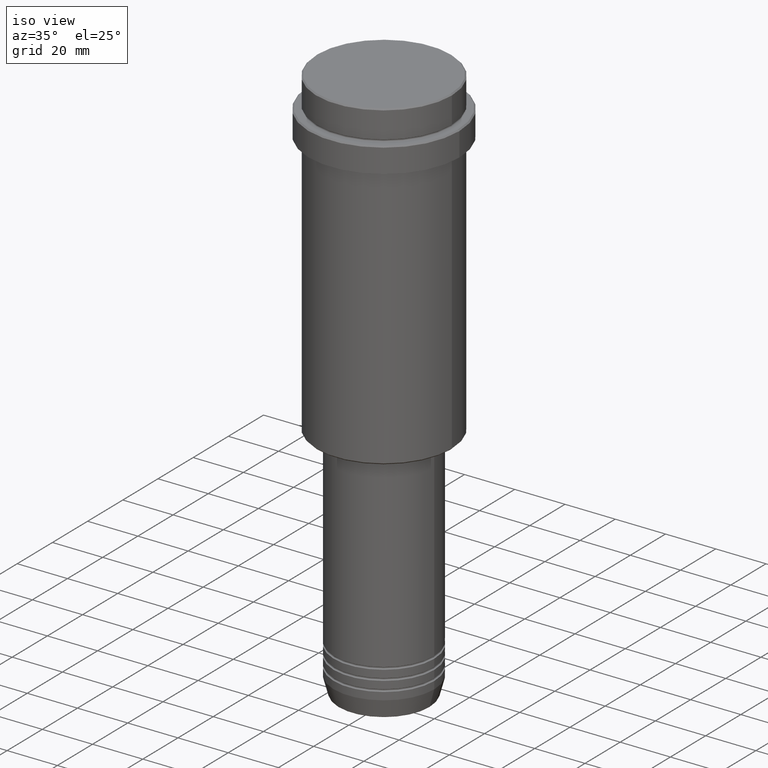
[diagram: clean part render]
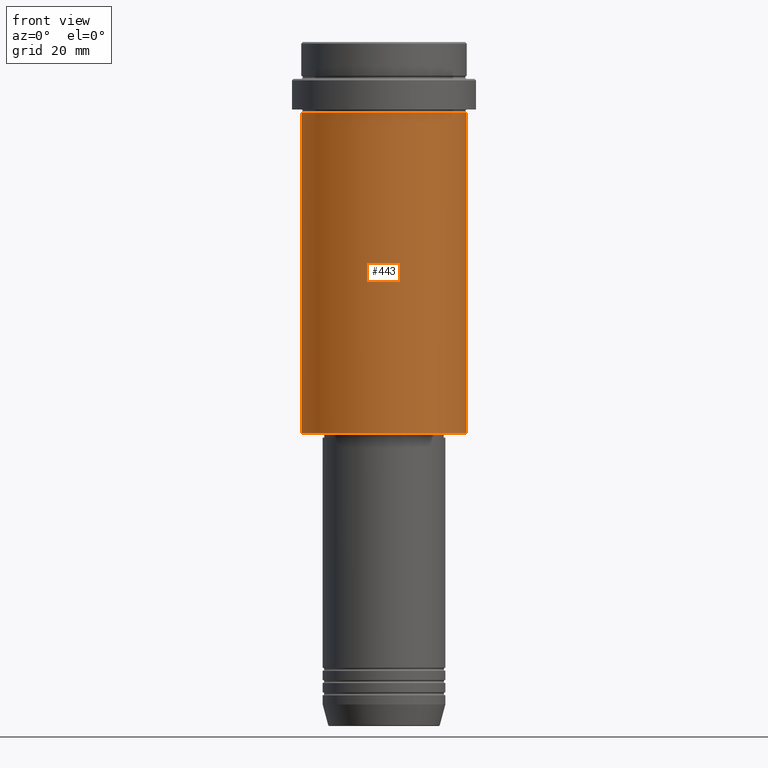
[diagram: tour spotlight — one face highlighted and labeled with its STEP entity id]
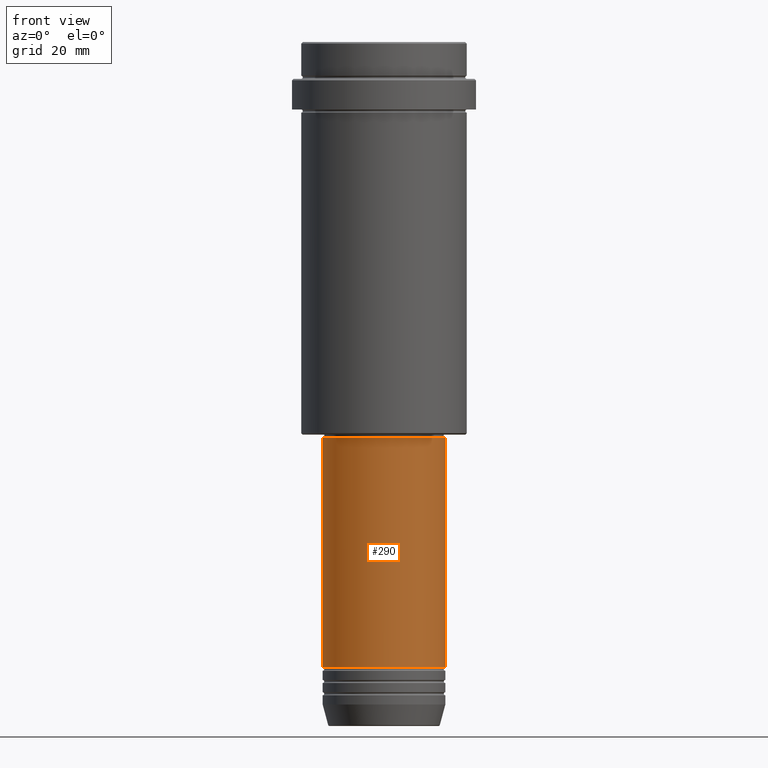
[diagram: tour spotlight — one face highlighted and labeled with its STEP entity id]
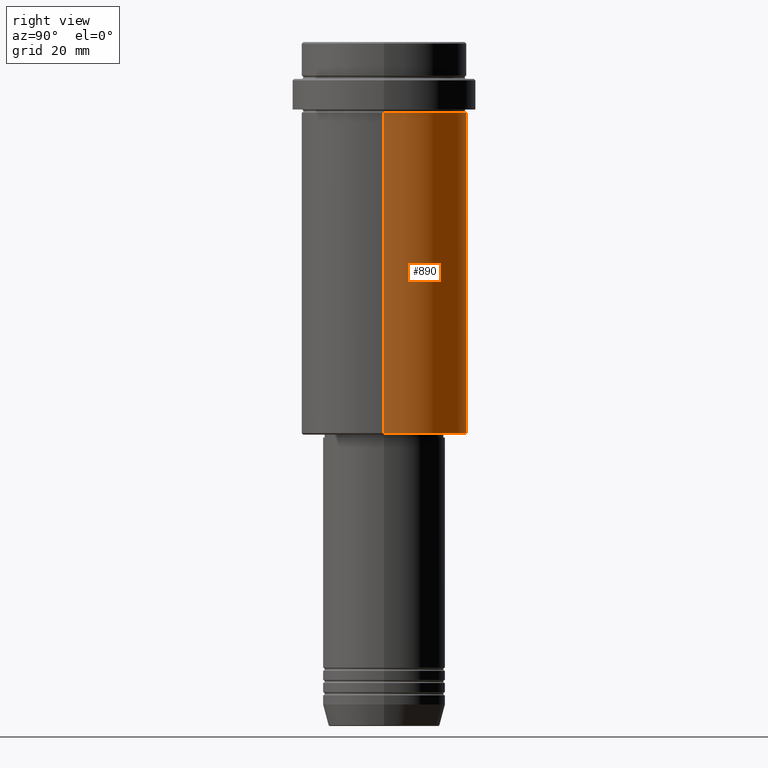
[diagram: tour spotlight — one face highlighted and labeled with its STEP entity id]
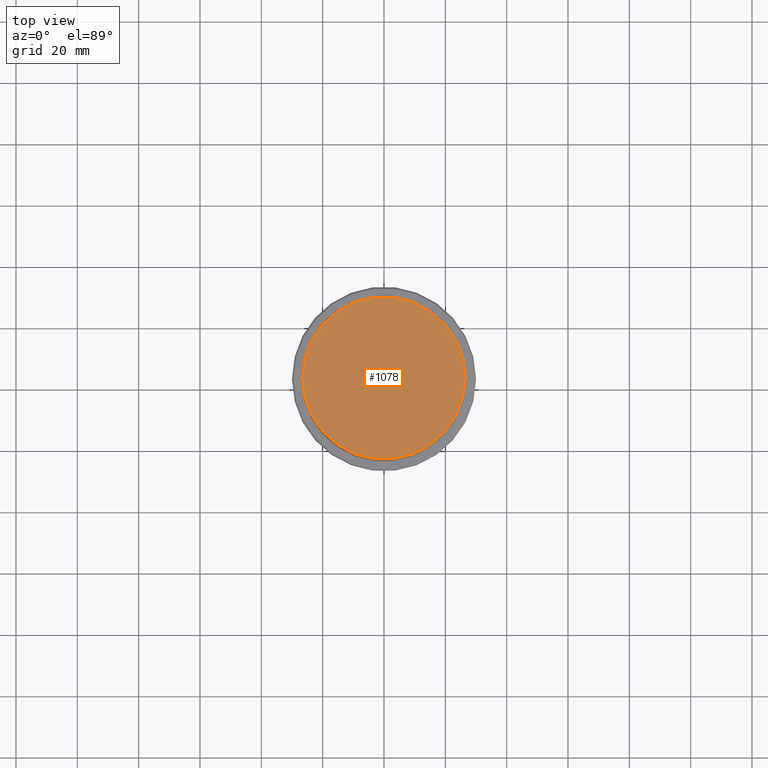
[diagram: tour spotlight — one face highlighted and labeled with its STEP entity id]
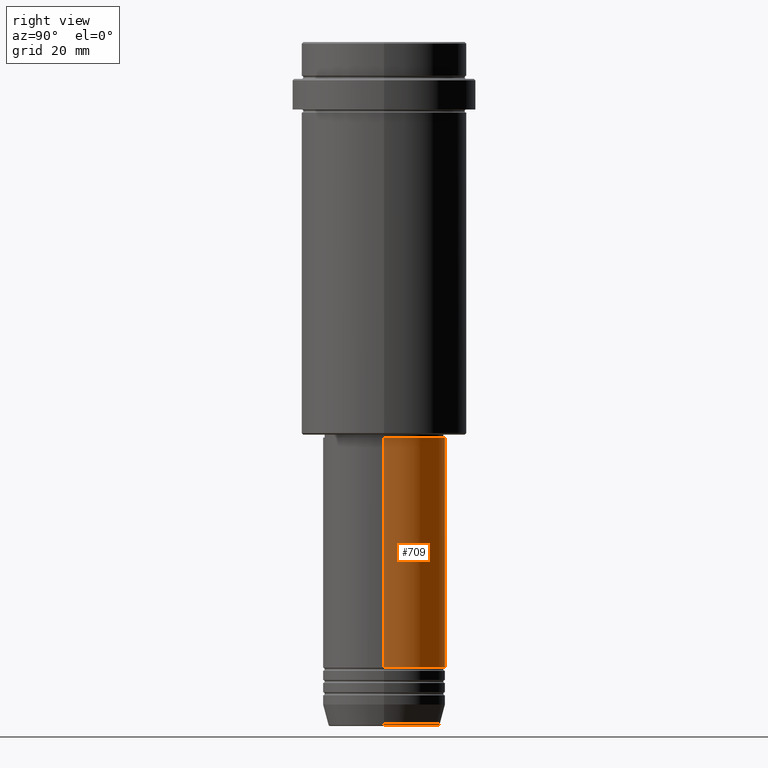
[diagram: tour spotlight — one face highlighted and labeled with its STEP entity id]
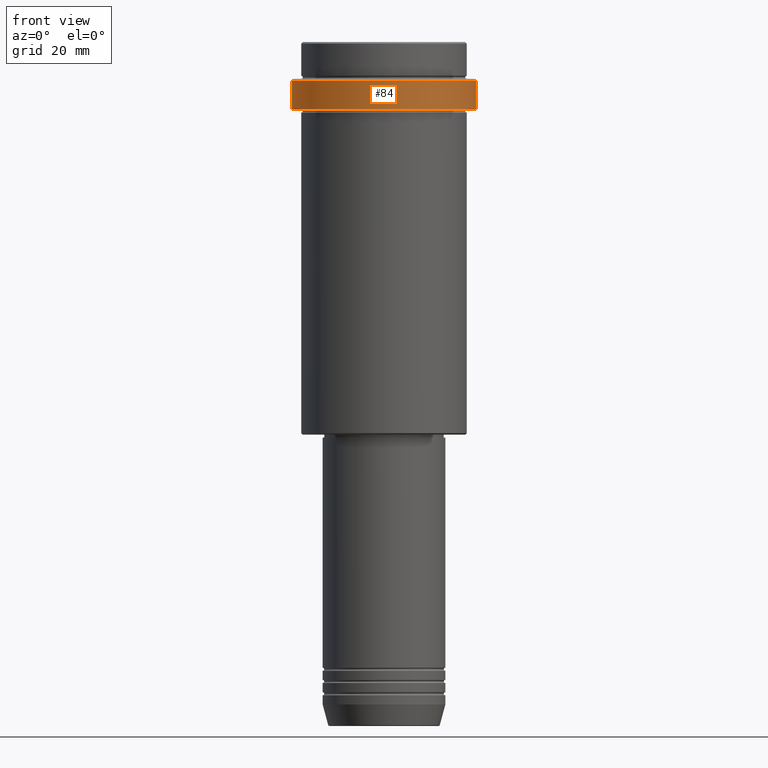
[diagram: tour spotlight — one face highlighted and labeled with its STEP entity id]
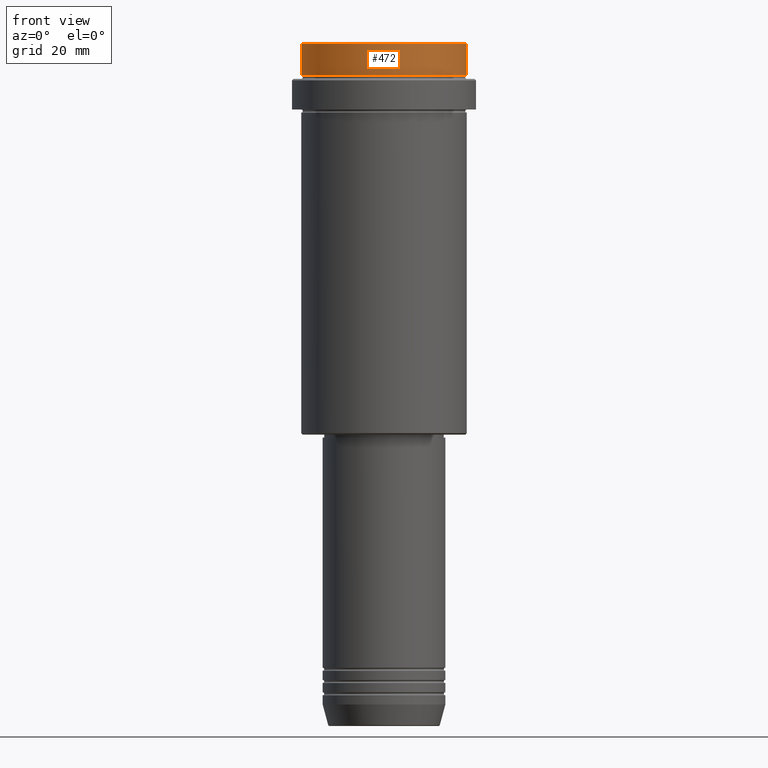
[diagram: tour spotlight — one face highlighted and labeled with its STEP entity id]
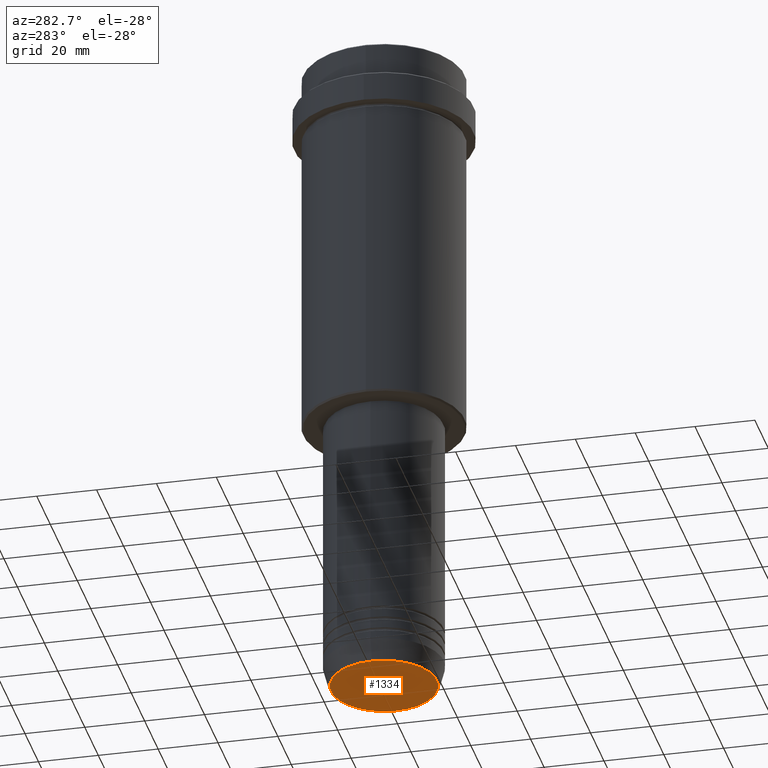
[diagram: tour spotlight — one face highlighted and labeled with its STEP entity id]
A machine part: a face-by-face anatomy tour. The part has 52 B-rep faces; the first image is the clean iso view, then the 8 largest visible faces are spotlighted one at a time (largest first), each with its STEP entity span.

Face 1 — front view, entity #443. In plain terms, the highlighted cylindrical surface (partial cylindrical patch) has radius 27 mm, axis along (-0, -0, 1).
Definition (entity closure, byte-faithful):
#11 = CARTESIAN_POINT ( 'NONE',  ( -26.99999999999999645, 3.306546357697853339E-15, -127.5000000000000284 ) ) ;
#41 = VERTEX_POINT ( 'NONE', #387 ) ;
#50 = DIRECTION ( 'NONE',  ( 1.000000000000000000, 0.000000000000000000, 0.000000000000000000 ) ) ;
#122 = CARTESIAN_POINT ( 'NONE',  ( 0.000000000000000000, 0.000000000000000000, -23.00000000000000000 ) ) ;
#161 = VECTOR ( 'NONE', #518, 1000.000000000000000 ) ;
#186 = EDGE_CURVE ( 'NONE', #1408, #680, #422, .T. ) ;
#214 = DIRECTION ( 'NONE',  ( -1.000000000000000000, 0.000000000000000000, 0.000000000000000000 ) ) ;
#277 = ORIENTED_EDGE ( 'NONE', *, *, #1221, .F. ) ;
#304 = CIRCLE ( 'NONE', #493, 26.99999999999999645 ) ;
#331 = VERTEX_POINT ( 'NONE', #11 ) ;
#357 = DIRECTION ( 'NONE',  ( -0.000000000000000000, -0.000000000000000000, 1.000000000000000000 ) ) ;
#386 = FACE_OUTER_BOUND ( 'NONE', #482, .T. ) ;
#387 = CARTESIAN_POINT ( 'NONE',  ( -26.99999999999999645, 3.306546357697853339E-15, -23.00000000000000000 ) ) ;
#401 = AXIS2_PLACEMENT_3D ( 'NONE', #620, #1254, #50 ) ;
#403 = LINE ( 'NONE', #1353, #736 ) ;
#422 = LINE ( 'NONE', #1273, #161 ) ;
#443 = ADVANCED_FACE ( 'NONE', ( #386 ), #1343, .T. ) ;
#455 = CARTESIAN_POINT ( 'NONE',  ( 0.000000000000000000, 0.000000000000000000, -127.5000000000000284 ) ) ;
#458 = ORIENTED_EDGE ( 'NONE', *, *, #717, .T. ) ;
#482 = EDGE_LOOP ( 'NONE', ( #1202, #458, #1125, #277 ) ) ;
#493 = AXIS2_PLACEMENT_3D ( 'NONE', #122, #1123, #804 ) ;
#518 = DIRECTION ( 'NONE',  ( -0.000000000000000000, -0.000000000000000000, 1.000000000000000000 ) ) ;
#542 = CIRCLE ( 'NONE', #816, 26.99999999999999645 ) ;
#599 = DIRECTION ( 'NONE',  ( -0.000000000000000000, -0.000000000000000000, 1.000000000000000000 ) ) ;
#620 = CARTESIAN_POINT ( 'NONE',  ( 0.000000000000000000, 0.000000000000000000, 0.000000000000000000 ) ) ;
#680 = VERTEX_POINT ( 'NONE', #1403 ) ;
#717 = EDGE_CURVE ( 'NONE', #331, #1408, #542, .T. ) ;
#736 = VECTOR ( 'NONE', #599, 1000.000000000000000 ) ;
#804 = DIRECTION ( 'NONE',  ( 1.000000000000000000, 0.000000000000000000, 0.000000000000000000 ) ) ;
#816 = AXIS2_PLACEMENT_3D ( 'NONE', #455, #357, #214 ) ;
#946 = CARTESIAN_POINT ( 'NONE',  ( 26.99999999999999645, 0.000000000000000000, -127.5000000000000284 ) ) ;
#1123 = DIRECTION ( 'NONE',  ( -0.000000000000000000, -0.000000000000000000, 1.000000000000000000 ) ) ;
#1125 = ORIENTED_EDGE ( 'NONE', *, *, #186, .T. ) ;
#1202 = ORIENTED_EDGE ( 'NONE', *, *, #1340, .F. ) ;
#1221 = EDGE_CURVE ( 'NONE', #41, #680, #304, .T. ) ;
#1254 = DIRECTION ( 'NONE',  ( -0.000000000000000000, -0.000000000000000000, 1.000000000000000000 ) ) ;
#1273 = CARTESIAN_POINT ( 'NONE',  ( 26.99999999999999645, 0.000000000000000000, 0.000000000000000000 ) ) ;
#1340 = EDGE_CURVE ( 'NONE', #331, #41, #403, .T. ) ;
#1343 = CYLINDRICAL_SURFACE ( 'NONE', #401, 26.99999999999999645 ) ;
#1353 = CARTESIAN_POINT ( 'NONE',  ( -26.99999999999999645, 3.306546357697853339E-15, 0.000000000000000000 ) ) ;
#1403 = CARTESIAN_POINT ( 'NONE',  ( 26.99999999999999645, 0.000000000000000000, -23.00000000000000000 ) ) ;
#1408 = VERTEX_POINT ( 'NONE', #946 ) ;

Face 2 — front view, entity #290. In plain terms, the highlighted cylindrical surface (partial cylindrical patch) has radius 20 mm, axis along (-0, -0, 1).
Definition (entity closure, byte-faithful):
#6 = CIRCLE ( 'NONE', #586, 19.99999999999999645 ) ;
#39 = EDGE_CURVE ( 'NONE', #578, #602, #393, .T. ) ;
#72 = AXIS2_PLACEMENT_3D ( 'NONE', #211, #650, #100 ) ;
#100 = DIRECTION ( 'NONE',  ( 1.000000000000000000, 0.000000000000000000, 0.000000000000000000 ) ) ;
#109 = DIRECTION ( 'NONE',  ( -0.000000000000000000, -0.000000000000000000, 1.000000000000000000 ) ) ;
#126 = CARTESIAN_POINT ( 'NONE',  ( 0.000000000000000000, 0.000000000000000000, -129.0000000000000284 ) ) ;
#133 = VERTEX_POINT ( 'NONE', #1268 ) ;
#142 = CARTESIAN_POINT ( 'NONE',  ( -19.99999999999999645, 2.449293598294706119E-15, 0.000000000000000000 ) ) ;
#169 = ORIENTED_EDGE ( 'NONE', *, *, #39, .F. ) ;
#211 = CARTESIAN_POINT ( 'NONE',  ( 0.000000000000000000, 0.000000000000000000, -203.9999999999999147 ) ) ;
#275 = LINE ( 'NONE', #809, #1128 ) ;
#290 = ADVANCED_FACE ( 'NONE', ( #772 ), #471, .T. ) ;
#300 = VERTEX_POINT ( 'NONE', #684 ) ;
#393 = LINE ( 'NONE', #142, #831 ) ;
#419 = EDGE_CURVE ( 'NONE', #133, #300, #275, .T. ) ;
#426 = AXIS2_PLACEMENT_3D ( 'NONE', #897, #109, #784 ) ;
#460 = ORIENTED_EDGE ( 'NONE', *, *, #1266, .F. ) ;
#471 = CYLINDRICAL_SURFACE ( 'NONE', #426, 19.99999999999999645 ) ;
#499 = DIRECTION ( 'NONE',  ( -0.000000000000000000, -0.000000000000000000, 1.000000000000000000 ) ) ;
#561 = ORIENTED_EDGE ( 'NONE', *, *, #1076, .T. ) ;
#578 = VERTEX_POINT ( 'NONE', #1288 ) ;
#586 = AXIS2_PLACEMENT_3D ( 'NONE', #126, #921, #1111 ) ;
#602 = VERTEX_POINT ( 'NONE', #1393 ) ;
#650 = DIRECTION ( 'NONE',  ( -0.000000000000000000, -0.000000000000000000, 1.000000000000000000 ) ) ;
#684 = CARTESIAN_POINT ( 'NONE',  ( 19.99999999999999645, 0.000000000000000000, -129.0000000000000284 ) ) ;
#772 = FACE_OUTER_BOUND ( 'NONE', #1216, .T. ) ;
#784 = DIRECTION ( 'NONE',  ( 1.000000000000000000, 0.000000000000000000, 0.000000000000000000 ) ) ;
#809 = CARTESIAN_POINT ( 'NONE',  ( 19.99999999999999645, 0.000000000000000000, 0.000000000000000000 ) ) ;
#831 = VECTOR ( 'NONE', #1143, 1000.000000000000000 ) ;
#897 = CARTESIAN_POINT ( 'NONE',  ( 0.000000000000000000, 0.000000000000000000, 0.000000000000000000 ) ) ;
#921 = DIRECTION ( 'NONE',  ( -0.000000000000000000, -0.000000000000000000, 1.000000000000000000 ) ) ;
#1076 = EDGE_CURVE ( 'NONE', #578, #133, #1163, .T. ) ;
#1111 = DIRECTION ( 'NONE',  ( 1.000000000000000000, 0.000000000000000000, 0.000000000000000000 ) ) ;
#1128 = VECTOR ( 'NONE', #499, 1000.000000000000000 ) ;
#1143 = DIRECTION ( 'NONE',  ( -0.000000000000000000, -0.000000000000000000, 1.000000000000000000 ) ) ;
#1163 = CIRCLE ( 'NONE', #72, 20.00000000000000000 ) ;
#1205 = ORIENTED_EDGE ( 'NONE', *, *, #419, .T. ) ;
#1216 = EDGE_LOOP ( 'NONE', ( #169, #561, #1205, #460 ) ) ;
#1266 = EDGE_CURVE ( 'NONE', #602, #300, #6, .T. ) ;
#1268 = CARTESIAN_POINT ( 'NONE',  ( 20.00000000000000000, 0.000000000000000000, -203.9999999999999147 ) ) ;
#1288 = CARTESIAN_POINT ( 'NONE',  ( -20.00000000000000000, 2.449293598294706513E-15, -203.9999999999999147 ) ) ;
#1393 = CARTESIAN_POINT ( 'NONE',  ( -19.99999999999999645, 2.449293598294706119E-15, -129.0000000000000284 ) ) ;

Face 3 — right view, entity #890. In plain terms, the highlighted cylindrical surface (partial cylindrical patch) has radius 27 mm, axis along (-0, -0, 1).
Definition (entity closure, byte-faithful):
#11 = CARTESIAN_POINT ( 'NONE',  ( -26.99999999999999645, 3.306546357697853339E-15, -127.5000000000000284 ) ) ;
#41 = VERTEX_POINT ( 'NONE', #387 ) ;
#102 = CYLINDRICAL_SURFACE ( 'NONE', #767, 26.99999999999999645 ) ;
#161 = VECTOR ( 'NONE', #518, 1000.000000000000000 ) ;
#186 = EDGE_CURVE ( 'NONE', #1408, #680, #422, .T. ) ;
#191 = DIRECTION ( 'NONE',  ( -0.000000000000000000, -0.000000000000000000, 1.000000000000000000 ) ) ;
#235 = AXIS2_PLACEMENT_3D ( 'NONE', #974, #191, #412 ) ;
#317 = EDGE_CURVE ( 'NONE', #1408, #331, #1280, .T. ) ;
#331 = VERTEX_POINT ( 'NONE', #11 ) ;
#343 = FACE_OUTER_BOUND ( 'NONE', #600, .T. ) ;
#387 = CARTESIAN_POINT ( 'NONE',  ( -26.99999999999999645, 3.306546357697853339E-15, -23.00000000000000000 ) ) ;
#399 = ORIENTED_EDGE ( 'NONE', *, *, #601, .F. ) ;
#403 = LINE ( 'NONE', #1353, #736 ) ;
#412 = DIRECTION ( 'NONE',  ( 1.000000000000000000, 0.000000000000000000, 0.000000000000000000 ) ) ;
#422 = LINE ( 'NONE', #1273, #161 ) ;
#445 = DIRECTION ( 'NONE',  ( -1.000000000000000000, 0.000000000000000000, 0.000000000000000000 ) ) ;
#518 = DIRECTION ( 'NONE',  ( -0.000000000000000000, -0.000000000000000000, 1.000000000000000000 ) ) ;
#599 = DIRECTION ( 'NONE',  ( -0.000000000000000000, -0.000000000000000000, 1.000000000000000000 ) ) ;
#600 = EDGE_LOOP ( 'NONE', ( #1325, #988, #399, #1382 ) ) ;
#601 = EDGE_CURVE ( 'NONE', #680, #41, #978, .T. ) ;
#680 = VERTEX_POINT ( 'NONE', #1403 ) ;
#736 = VECTOR ( 'NONE', #599, 1000.000000000000000 ) ;
#767 = AXIS2_PLACEMENT_3D ( 'NONE', #985, #1410, #876 ) ;
#876 = DIRECTION ( 'NONE',  ( 1.000000000000000000, 0.000000000000000000, 0.000000000000000000 ) ) ;
#885 = CARTESIAN_POINT ( 'NONE',  ( 0.000000000000000000, 0.000000000000000000, -127.5000000000000284 ) ) ;
#890 = ADVANCED_FACE ( 'NONE', ( #343 ), #102, .T. ) ;
#946 = CARTESIAN_POINT ( 'NONE',  ( 26.99999999999999645, 0.000000000000000000, -127.5000000000000284 ) ) ;
#974 = CARTESIAN_POINT ( 'NONE',  ( 0.000000000000000000, 0.000000000000000000, -23.00000000000000000 ) ) ;
#978 = CIRCLE ( 'NONE', #235, 26.99999999999999645 ) ;
#985 = CARTESIAN_POINT ( 'NONE',  ( 0.000000000000000000, 0.000000000000000000, 0.000000000000000000 ) ) ;
#988 = ORIENTED_EDGE ( 'NONE', *, *, #1340, .T. ) ;
#1093 = DIRECTION ( 'NONE',  ( -0.000000000000000000, -0.000000000000000000, 1.000000000000000000 ) ) ;
#1273 = CARTESIAN_POINT ( 'NONE',  ( 26.99999999999999645, 0.000000000000000000, 0.000000000000000000 ) ) ;
#1280 = CIRCLE ( 'NONE', #1304, 26.99999999999999645 ) ;
#1304 = AXIS2_PLACEMENT_3D ( 'NONE', #885, #1093, #445 ) ;
#1325 = ORIENTED_EDGE ( 'NONE', *, *, #317, .T. ) ;
#1340 = EDGE_CURVE ( 'NONE', #331, #41, #403, .T. ) ;
#1353 = CARTESIAN_POINT ( 'NONE',  ( -26.99999999999999645, 3.306546357697853339E-15, 0.000000000000000000 ) ) ;
#1382 = ORIENTED_EDGE ( 'NONE', *, *, #186, .F. ) ;
#1403 = CARTESIAN_POINT ( 'NONE',  ( 26.99999999999999645, 0.000000000000000000, -23.00000000000000000 ) ) ;
#1408 = VERTEX_POINT ( 'NONE', #946 ) ;
#1410 = DIRECTION ( 'NONE',  ( -0.000000000000000000, -0.000000000000000000, 1.000000000000000000 ) ) ;

Face 4 — top view, entity #1078. In plain terms, the highlighted planar face has unit normal (0, -0, 1).
Definition (entity closure, byte-faithful):
#21 = VERTEX_POINT ( 'NONE', #149 ) ;
#138 = CIRCLE ( 'NONE', #1041, 26.50000000000002487 ) ;
#149 = CARTESIAN_POINT ( 'NONE',  ( -26.50000000000002487, 0.000000000000000000, 0.000000000000000000 ) ) ;
#171 = ORIENTED_EDGE ( 'NONE', *, *, #463, .T. ) ;
#197 = FACE_OUTER_BOUND ( 'NONE', #553, .T. ) ;
#284 = AXIS2_PLACEMENT_3D ( 'NONE', #696, #1126, #913 ) ;
#360 = DIRECTION ( 'NONE',  ( -0.000000000000000000, -0.000000000000000000, 1.000000000000000000 ) ) ;
#364 = EDGE_CURVE ( 'NONE', #697, #21, #138, .T. ) ;
#463 = EDGE_CURVE ( 'NONE', #21, #697, #701, .T. ) ;
#553 = EDGE_LOOP ( 'NONE', ( #171, #1293 ) ) ;
#645 = CARTESIAN_POINT ( 'NONE',  ( 26.50000000000002487, 3.275930187719171130E-15, 0.000000000000000000 ) ) ;
#696 = CARTESIAN_POINT ( 'NONE',  ( 0.000000000000000000, 0.000000000000000000, 0.000000000000000000 ) ) ;
#697 = VERTEX_POINT ( 'NONE', #645 ) ;
#701 = CIRCLE ( 'NONE', #284, 26.50000000000002487 ) ;
#797 = DIRECTION ( 'NONE',  ( 1.000000000000000000, 0.000000000000000000, 0.000000000000000000 ) ) ;
#866 = PLANE ( 'NONE',  #1217 ) ;
#889 = CARTESIAN_POINT ( 'NONE',  ( 0.000000000000000000, 0.000000000000000000, 0.000000000000000000 ) ) ;
#913 = DIRECTION ( 'NONE',  ( 1.000000000000000000, 0.000000000000000000, 0.000000000000000000 ) ) ;
#990 = DIRECTION ( 'NONE',  ( 0.000000000000000000, -0.000000000000000000, 1.000000000000000000 ) ) ;
#1041 = AXIS2_PLACEMENT_3D ( 'NONE', #1098, #360, #797 ) ;
#1075 = DIRECTION ( 'NONE',  ( 1.000000000000000000, 0.000000000000000000, 0.000000000000000000 ) ) ;
#1078 = ADVANCED_FACE ( 'NONE', ( #197 ), #866, .T. ) ;
#1098 = CARTESIAN_POINT ( 'NONE',  ( 0.000000000000000000, 0.000000000000000000, 0.000000000000000000 ) ) ;
#1126 = DIRECTION ( 'NONE',  ( -0.000000000000000000, -0.000000000000000000, 1.000000000000000000 ) ) ;
#1217 = AXIS2_PLACEMENT_3D ( 'NONE', #889, #990, #1075 ) ;
#1293 = ORIENTED_EDGE ( 'NONE', *, *, #364, .T. ) ;

Face 5 — right view, entity #709. In plain terms, the highlighted cylindrical surface (partial cylindrical patch) has radius 20 mm, axis along (-0, -0, 1).
Definition (entity closure, byte-faithful):
#39 = EDGE_CURVE ( 'NONE', #578, #602, #393, .T. ) ;
#85 = DIRECTION ( 'NONE',  ( 1.000000000000000000, 0.000000000000000000, 0.000000000000000000 ) ) ;
#121 = ORIENTED_EDGE ( 'NONE', *, *, #419, .F. ) ;
#133 = VERTEX_POINT ( 'NONE', #1268 ) ;
#142 = CARTESIAN_POINT ( 'NONE',  ( -19.99999999999999645, 2.449293598294706119E-15, 0.000000000000000000 ) ) ;
#198 = CARTESIAN_POINT ( 'NONE',  ( 0.000000000000000000, 0.000000000000000000, 0.000000000000000000 ) ) ;
#275 = LINE ( 'NONE', #809, #1128 ) ;
#300 = VERTEX_POINT ( 'NONE', #684 ) ;
#318 = CARTESIAN_POINT ( 'NONE',  ( 0.000000000000000000, 0.000000000000000000, -203.9999999999999147 ) ) ;
#380 = DIRECTION ( 'NONE',  ( 1.000000000000000000, 0.000000000000000000, 0.000000000000000000 ) ) ;
#393 = LINE ( 'NONE', #142, #831 ) ;
#398 = DIRECTION ( 'NONE',  ( 1.000000000000000000, 0.000000000000000000, 0.000000000000000000 ) ) ;
#419 = EDGE_CURVE ( 'NONE', #133, #300, #275, .T. ) ;
#499 = DIRECTION ( 'NONE',  ( -0.000000000000000000, -0.000000000000000000, 1.000000000000000000 ) ) ;
#506 = ORIENTED_EDGE ( 'NONE', *, *, #637, .T. ) ;
#531 = EDGE_CURVE ( 'NONE', #300, #602, #1375, .T. ) ;
#578 = VERTEX_POINT ( 'NONE', #1288 ) ;
#602 = VERTEX_POINT ( 'NONE', #1393 ) ;
#637 = EDGE_CURVE ( 'NONE', #133, #578, #792, .T. ) ;
#684 = CARTESIAN_POINT ( 'NONE',  ( 19.99999999999999645, 0.000000000000000000, -129.0000000000000284 ) ) ;
#702 = AXIS2_PLACEMENT_3D ( 'NONE', #198, #1369, #398 ) ;
#708 = DIRECTION ( 'NONE',  ( -0.000000000000000000, -0.000000000000000000, 1.000000000000000000 ) ) ;
#709 = ADVANCED_FACE ( 'NONE', ( #1153 ), #746, .T. ) ;
#719 = AXIS2_PLACEMENT_3D ( 'NONE', #318, #1181, #85 ) ;
#746 = CYLINDRICAL_SURFACE ( 'NONE', #702, 19.99999999999999645 ) ;
#764 = AXIS2_PLACEMENT_3D ( 'NONE', #1349, #708, #380 ) ;
#792 = CIRCLE ( 'NONE', #719, 20.00000000000000000 ) ;
#809 = CARTESIAN_POINT ( 'NONE',  ( 19.99999999999999645, 0.000000000000000000, 0.000000000000000000 ) ) ;
#831 = VECTOR ( 'NONE', #1143, 1000.000000000000000 ) ;
#846 = ORIENTED_EDGE ( 'NONE', *, *, #531, .F. ) ;
#1022 = ORIENTED_EDGE ( 'NONE', *, *, #39, .T. ) ;
#1054 = EDGE_LOOP ( 'NONE', ( #506, #1022, #846, #121 ) ) ;
#1128 = VECTOR ( 'NONE', #499, 1000.000000000000000 ) ;
#1143 = DIRECTION ( 'NONE',  ( -0.000000000000000000, -0.000000000000000000, 1.000000000000000000 ) ) ;
#1153 = FACE_OUTER_BOUND ( 'NONE', #1054, .T. ) ;
#1181 = DIRECTION ( 'NONE',  ( -0.000000000000000000, -0.000000000000000000, 1.000000000000000000 ) ) ;
#1268 = CARTESIAN_POINT ( 'NONE',  ( 20.00000000000000000, 0.000000000000000000, -203.9999999999999147 ) ) ;
#1288 = CARTESIAN_POINT ( 'NONE',  ( -20.00000000000000000, 2.449293598294706513E-15, -203.9999999999999147 ) ) ;
#1349 = CARTESIAN_POINT ( 'NONE',  ( 0.000000000000000000, 0.000000000000000000, -129.0000000000000284 ) ) ;
#1369 = DIRECTION ( 'NONE',  ( -0.000000000000000000, -0.000000000000000000, 1.000000000000000000 ) ) ;
#1375 = CIRCLE ( 'NONE', #764, 19.99999999999999645 ) ;
#1393 = CARTESIAN_POINT ( 'NONE',  ( -19.99999999999999645, 2.449293598294706119E-15, -129.0000000000000284 ) ) ;

Face 6 — front view, entity #84. In plain terms, the highlighted cylindrical surface (partial cylindrical patch) has radius 30 mm, axis along (-0, -0, 1).
Definition (entity closure, byte-faithful):
#10 = AXIS2_PLACEMENT_3D ( 'NONE', #429, #873, #1180 ) ;
#12 = VERTEX_POINT ( 'NONE', #1344 ) ;
#77 = DIRECTION ( 'NONE',  ( 1.000000000000000000, 0.000000000000000000, 0.000000000000000000 ) ) ;
#84 = ADVANCED_FACE ( 'NONE', ( #945 ), #1372, .T. ) ;
#88 = VERTEX_POINT ( 'NONE', #598 ) ;
#192 = ORIENTED_EDGE ( 'NONE', *, *, #1120, .T. ) ;
#352 = CARTESIAN_POINT ( 'NONE',  ( 30.00000000000000000, 0.000000000000000000, 0.000000000000000000 ) ) ;
#372 = DIRECTION ( 'NONE',  ( -0.000000000000000000, -0.000000000000000000, 1.000000000000000000 ) ) ;
#375 = AXIS2_PLACEMENT_3D ( 'NONE', #402, #372, #810 ) ;
#395 = EDGE_CURVE ( 'NONE', #501, #12, #457, .T. ) ;
#402 = CARTESIAN_POINT ( 'NONE',  ( 0.000000000000000000, 0.000000000000000000, 0.000000000000000000 ) ) ;
#429 = CARTESIAN_POINT ( 'NONE',  ( 0.000000000000000000, 0.000000000000000000, -22.00000000000000355 ) ) ;
#457 = LINE ( 'NONE', #1314, #1239 ) ;
#501 = VERTEX_POINT ( 'NONE', #1138 ) ;
#515 = EDGE_LOOP ( 'NONE', ( #1119, #192, #711, #996 ) ) ;
#559 = CIRCLE ( 'NONE', #1110, 30.00000000000000000 ) ;
#598 = CARTESIAN_POINT ( 'NONE',  ( 29.99999999999999645, 0.000000000000000000, -22.00000000000000355 ) ) ;
#711 = ORIENTED_EDGE ( 'NONE', *, *, #1198, .T. ) ;
#752 = CARTESIAN_POINT ( 'NONE',  ( 30.00000000000000000, 0.000000000000000000, -12.49999999999995381 ) ) ;
#777 = DIRECTION ( 'NONE',  ( -0.000000000000000000, -0.000000000000000000, 1.000000000000000000 ) ) ;
#785 = CIRCLE ( 'NONE', #10, 29.99999999999999645 ) ;
#810 = DIRECTION ( 'NONE',  ( 1.000000000000000000, 0.000000000000000000, 0.000000000000000000 ) ) ;
#854 = DIRECTION ( 'NONE',  ( 0.000000000000000000, 0.000000000000000000, -1.000000000000000000 ) ) ;
#873 = DIRECTION ( 'NONE',  ( -0.000000000000000000, -0.000000000000000000, 1.000000000000000000 ) ) ;
#945 = FACE_OUTER_BOUND ( 'NONE', #515, .T. ) ;
#996 = ORIENTED_EDGE ( 'NONE', *, *, #1059, .T. ) ;
#1059 = EDGE_CURVE ( 'NONE', #1161, #12, #559, .T. ) ;
#1091 = CARTESIAN_POINT ( 'NONE',  ( 0.000000000000000000, 0.000000000000000000, -12.49999999999995381 ) ) ;
#1110 = AXIS2_PLACEMENT_3D ( 'NONE', #1091, #854, #77 ) ;
#1119 = ORIENTED_EDGE ( 'NONE', *, *, #395, .F. ) ;
#1120 = EDGE_CURVE ( 'NONE', #501, #88, #785, .T. ) ;
#1138 = CARTESIAN_POINT ( 'NONE',  ( -29.99999999999999645, 3.673940397442058389E-15, -22.00000000000000355 ) ) ;
#1161 = VERTEX_POINT ( 'NONE', #752 ) ;
#1180 = DIRECTION ( 'NONE',  ( 1.000000000000000000, 0.000000000000000000, 0.000000000000000000 ) ) ;
#1198 = EDGE_CURVE ( 'NONE', #88, #1161, #1333, .T. ) ;
#1218 = DIRECTION ( 'NONE',  ( -0.000000000000000000, -0.000000000000000000, 1.000000000000000000 ) ) ;
#1239 = VECTOR ( 'NONE', #777, 1000.000000000000000 ) ;
#1314 = CARTESIAN_POINT ( 'NONE',  ( -30.00000000000000000, 3.673940397442059178E-15, 0.000000000000000000 ) ) ;
#1333 = LINE ( 'NONE', #352, #1355 ) ;
#1344 = CARTESIAN_POINT ( 'NONE',  ( -30.00000000000000000, 3.673940397442059178E-15, -12.49999999999995381 ) ) ;
#1355 = VECTOR ( 'NONE', #1218, 1000.000000000000000 ) ;
#1372 = CYLINDRICAL_SURFACE ( 'NONE', #375, 30.00000000000000000 ) ;

Face 7 — front view, entity #472. In plain terms, the highlighted cylindrical surface (partial cylindrical patch) has radius 27 mm, axis along (-0, -0, 1).
Definition (entity closure, byte-faithful):
#26 = LINE ( 'NONE', #229, #281 ) ;
#43 = CARTESIAN_POINT ( 'NONE',  ( -26.99999999999999645, 3.306546357697853339E-15, -11.00000000000000178 ) ) ;
#46 = AXIS2_PLACEMENT_3D ( 'NONE', #919, #280, #827 ) ;
#82 = VERTEX_POINT ( 'NONE', #172 ) ;
#140 = CYLINDRICAL_SURFACE ( 'NONE', #46, 26.99999999999999645 ) ;
#172 = CARTESIAN_POINT ( 'NONE',  ( -26.99999999999999645, 3.306546357697853339E-15, -0.4999999999999761302 ) ) ;
#229 = CARTESIAN_POINT ( 'NONE',  ( -26.99999999999999645, 3.306546357697853339E-15, 0.000000000000000000 ) ) ;
#233 = CIRCLE ( 'NONE', #884, 26.99999999999999645 ) ;
#268 = EDGE_LOOP ( 'NONE', ( #1193, #852, #303, #1099 ) ) ;
#280 = DIRECTION ( 'NONE',  ( -0.000000000000000000, -0.000000000000000000, 1.000000000000000000 ) ) ;
#281 = VECTOR ( 'NONE', #900, 1000.000000000000000 ) ;
#303 = ORIENTED_EDGE ( 'NONE', *, *, #871, .T. ) ;
#328 = CARTESIAN_POINT ( 'NONE',  ( 0.000000000000000000, 0.000000000000000000, -11.00000000000000178 ) ) ;
#338 = EDGE_CURVE ( 'NONE', #473, #355, #233, .T. ) ;
#355 = VERTEX_POINT ( 'NONE', #892 ) ;
#367 = DIRECTION ( 'NONE',  ( 1.000000000000000000, 0.000000000000000000, 0.000000000000000000 ) ) ;
#376 = CIRCLE ( 'NONE', #1086, 26.99999999999999645 ) ;
#472 = ADVANCED_FACE ( 'NONE', ( #1142 ), #140, .T. ) ;
#473 = VERTEX_POINT ( 'NONE', #43 ) ;
#498 = VECTOR ( 'NONE', #1222, 1000.000000000000000 ) ;
#503 = EDGE_CURVE ( 'NONE', #964, #82, #376, .T. ) ;
#705 = DIRECTION ( 'NONE',  ( 0.000000000000000000, 0.000000000000000000, -1.000000000000000000 ) ) ;
#771 = LINE ( 'NONE', #1102, #498 ) ;
#827 = DIRECTION ( 'NONE',  ( 1.000000000000000000, 0.000000000000000000, 0.000000000000000000 ) ) ;
#830 = CARTESIAN_POINT ( 'NONE',  ( 26.99999999999999645, 0.000000000000000000, -0.4999999999999761302 ) ) ;
#852 = ORIENTED_EDGE ( 'NONE', *, *, #338, .T. ) ;
#871 = EDGE_CURVE ( 'NONE', #355, #964, #771, .T. ) ;
#884 = AXIS2_PLACEMENT_3D ( 'NONE', #328, #1000, #1107 ) ;
#892 = CARTESIAN_POINT ( 'NONE',  ( 26.99999999999999645, 0.000000000000000000, -11.00000000000000178 ) ) ;
#900 = DIRECTION ( 'NONE',  ( -0.000000000000000000, -0.000000000000000000, 1.000000000000000000 ) ) ;
#919 = CARTESIAN_POINT ( 'NONE',  ( 0.000000000000000000, 0.000000000000000000, 0.000000000000000000 ) ) ;
#939 = CARTESIAN_POINT ( 'NONE',  ( 0.000000000000000000, 0.000000000000000000, -0.4999999999999761302 ) ) ;
#964 = VERTEX_POINT ( 'NONE', #830 ) ;
#1000 = DIRECTION ( 'NONE',  ( -0.000000000000000000, -0.000000000000000000, 1.000000000000000000 ) ) ;
#1086 = AXIS2_PLACEMENT_3D ( 'NONE', #939, #705, #367 ) ;
#1099 = ORIENTED_EDGE ( 'NONE', *, *, #503, .T. ) ;
#1102 = CARTESIAN_POINT ( 'NONE',  ( 26.99999999999999645, 0.000000000000000000, 0.000000000000000000 ) ) ;
#1107 = DIRECTION ( 'NONE',  ( 1.000000000000000000, 0.000000000000000000, 0.000000000000000000 ) ) ;
#1142 = FACE_OUTER_BOUND ( 'NONE', #268, .T. ) ;
#1193 = ORIENTED_EDGE ( 'NONE', *, *, #1252, .F. ) ;
#1222 = DIRECTION ( 'NONE',  ( -0.000000000000000000, -0.000000000000000000, 1.000000000000000000 ) ) ;
#1252 = EDGE_CURVE ( 'NONE', #473, #82, #26, .T. ) ;

Face 8 — auxiliary view, entity #1334. In plain terms, the highlighted planar face has unit normal (0, -0, 1).
Definition (entity closure, byte-faithful):
#64 = DIRECTION ( 'NONE',  ( 0.000000000000000000, 0.000000000000000000, -1.000000000000000000 ) ) ;
#124 = DIRECTION ( 'NONE',  ( 0.000000000000000000, 0.000000000000000000, -1.000000000000000000 ) ) ;
#162 = AXIS2_PLACEMENT_3D ( 'NONE', #492, #1364, #1345 ) ;
#165 = CARTESIAN_POINT ( 'NONE',  ( 0.000000000000000000, 0.000000000000000000, -223.0000000000000284 ) ) ;
#351 = EDGE_CURVE ( 'NONE', #638, #1332, #1259, .T. ) ;
#366 = ORIENTED_EDGE ( 'NONE', *, *, #1320, .T. ) ;
#477 = AXIS2_PLACEMENT_3D ( 'NONE', #165, #64, #714 ) ;
#492 = CARTESIAN_POINT ( 'NONE',  ( 0.000000000000000000, 0.000000000000000000, -223.0000000000000284 ) ) ;
#514 = CARTESIAN_POINT ( 'NONE',  ( 17.74069215899265473, 0.000000000000000000, -223.0000000000000284 ) ) ;
#516 = CIRCLE ( 'NONE', #477, 17.74069215899265473 ) ;
#519 = FACE_OUTER_BOUND ( 'NONE', #685, .T. ) ;
#577 = DIRECTION ( 'NONE',  ( 1.000000000000000000, 0.000000000000000000, 0.000000000000000000 ) ) ;
#638 = VERTEX_POINT ( 'NONE', #514 ) ;
#685 = EDGE_LOOP ( 'NONE', ( #803, #366 ) ) ;
#714 = DIRECTION ( 'NONE',  ( 1.000000000000000000, 0.000000000000000000, 0.000000000000000000 ) ) ;
#737 = AXIS2_PLACEMENT_3D ( 'NONE', #902, #124, #577 ) ;
#803 = ORIENTED_EDGE ( 'NONE', *, *, #351, .T. ) ;
#902 = CARTESIAN_POINT ( 'NONE',  ( 0.000000000000000000, 0.000000000000000000, -223.0000000000000284 ) ) ;
#1259 = CIRCLE ( 'NONE', #737, 17.74069215899265473 ) ;
#1265 = CARTESIAN_POINT ( 'NONE',  ( -17.74069215899265473, 2.202181136001357170E-15, -223.0000000000000284 ) ) ;
#1320 = EDGE_CURVE ( 'NONE', #1332, #638, #516, .T. ) ;
#1332 = VERTEX_POINT ( 'NONE', #1265 ) ;
#1334 = ADVANCED_FACE ( 'NONE', ( #519 ), #1360, .F. ) ;
#1345 = DIRECTION ( 'NONE',  ( 1.000000000000000000, 0.000000000000000000, 0.000000000000000000 ) ) ;
#1360 = PLANE ( 'NONE',  #162 ) ;
#1364 = DIRECTION ( 'NONE',  ( 0.000000000000000000, -0.000000000000000000, 1.000000000000000000 ) ) ;